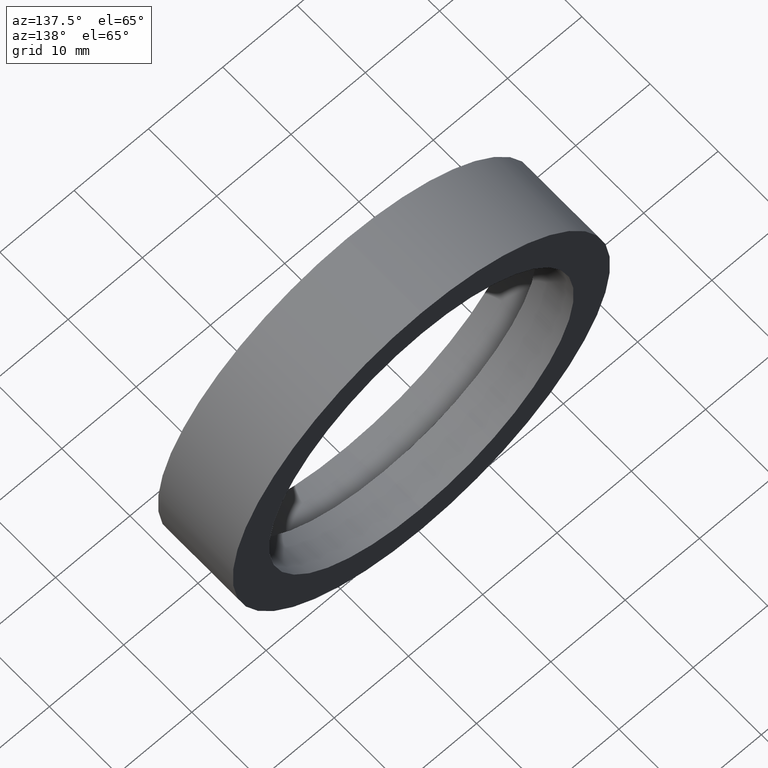
[diagram: clean part render]
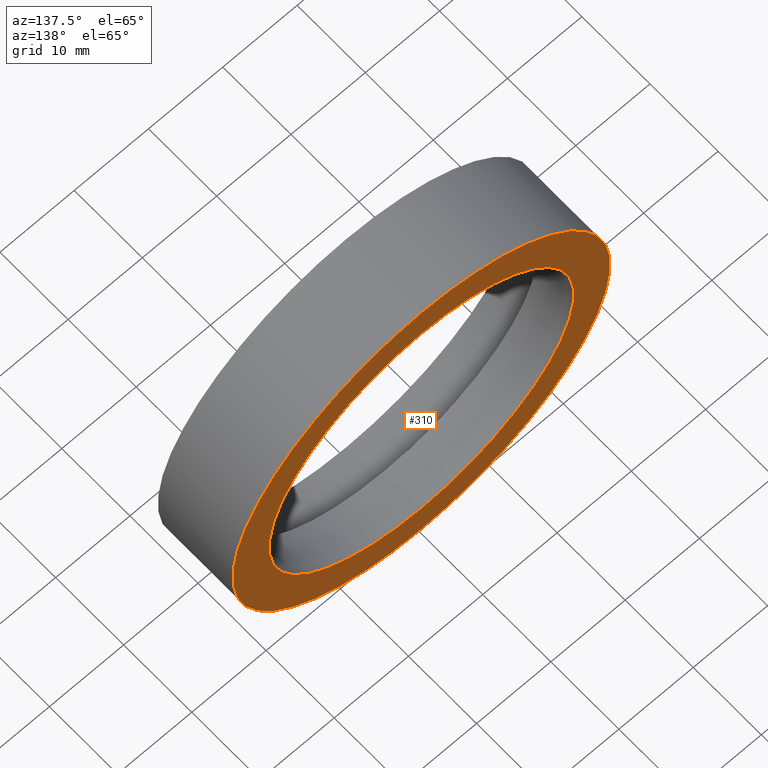
[diagram: same view with one face highlighted and labeled with its STEP entity id]
A machine part, auxiliary view. The second image highlights one B-rep face of the part: STEP entity #310.
In plain terms, the highlighted planar face has unit normal (0, -1, 0).
Its self-contained STEP definition (entity closure, byte-faithful):
#2 = EDGE_LOOP ( 'NONE', ( #192, #219 ) ) ;
#6 = ORIENTED_EDGE ( 'NONE', *, *, #84, .T. ) ;
#7 = EDGE_LOOP ( 'NONE', ( #319, #6 ) ) ;
#8 = VERTEX_POINT ( 'NONE', #174 ) ;
#12 = CARTESIAN_POINT ( 'NONE',  ( 2.510525938252074900E-015, 10.99999999999999600, -20.50000000000000700 ) ) ;
#16 = EDGE_CURVE ( 'NONE', #8, #180, #321, .T. ) ;
#26 = EDGE_CURVE ( 'NONE', #151, #168, #407, .T. ) ;
#67 = DIRECTION ( 'NONE',  ( 0.0000000000000000000, -1.000000000000000000, 0.0000000000000000000 ) ) ;
#80 = DIRECTION ( 'NONE',  ( 0.0000000000000000000, 0.0000000000000000000, 1.000000000000000000 ) ) ;
#84 = EDGE_CURVE ( 'NONE', #168, #151, #380, .T. ) ;
#99 = CARTESIAN_POINT ( 'NONE',  ( 20.50000000000000700, 11.00000000000000000, 0.0000000000000000000 ) ) ;
#106 = CARTESIAN_POINT ( 'NONE',  ( 0.0000000000000000000, 10.99999999999999600, 0.0000000000000000000 ) ) ;
#108 = DIRECTION ( 'NONE',  ( -0.0000000000000000000, 1.000000000000000000, -0.0000000000000000000 ) ) ;
#121 = DIRECTION ( 'NONE',  ( 0.0000000000000000000, 0.0000000000000000000, 1.000000000000000000 ) ) ;
#126 = EDGE_CURVE ( 'NONE', #180, #8, #393, .T. ) ;
#127 = AXIS2_PLACEMENT_3D ( 'NONE', #99, #67, #427 ) ;
#128 = DIRECTION ( 'NONE',  ( -0.0000000000000000000, 1.000000000000000000, -0.0000000000000000000 ) ) ;
#141 = AXIS2_PLACEMENT_3D ( 'NONE', #222, #417, #189 ) ;
#151 = VERTEX_POINT ( 'NONE', #363 ) ;
#168 = VERTEX_POINT ( 'NONE', #390 ) ;
#172 = CARTESIAN_POINT ( 'NONE',  ( 0.0000000000000000000, 10.99999999999999600, 0.0000000000000000000 ) ) ;
#174 = CARTESIAN_POINT ( 'NONE',  ( 0.0000000000000000000, 10.99999999999999600, 20.50000000000000700 ) ) ;
#180 = VERTEX_POINT ( 'NONE', #12 ) ;
#189 = DIRECTION ( 'NONE',  ( 0.0000000000000000000, 0.0000000000000000000, 1.000000000000000000 ) ) ;
#192 = ORIENTED_EDGE ( 'NONE', *, *, #16, .F. ) ;
#193 = FACE_OUTER_BOUND ( 'NONE', #7, .T. ) ;
#219 = ORIENTED_EDGE ( 'NONE', *, *, #126, .F. ) ;
#222 = CARTESIAN_POINT ( 'NONE',  ( 0.0000000000000000000, 10.99999999999999600, 0.0000000000000000000 ) ) ;
#266 = CARTESIAN_POINT ( 'NONE',  ( 0.0000000000000000000, 10.99999999999999600, 0.0000000000000000000 ) ) ;
#275 = PLANE ( 'NONE',  #127 ) ;
#290 = AXIS2_PLACEMENT_3D ( 'NONE', #106, #108, #387 ) ;
#306 = AXIS2_PLACEMENT_3D ( 'NONE', #172, #128, #80 ) ;
#310 = ADVANCED_FACE ( 'NONE', ( #364, #193 ), #275, .F. ) ;
#319 = ORIENTED_EDGE ( 'NONE', *, *, #26, .T. ) ;
#321 = CIRCLE ( 'NONE', #306, 20.50000000000000700 ) ;
#334 = DIRECTION ( 'NONE',  ( -0.0000000000000000000, 1.000000000000000000, -0.0000000000000000000 ) ) ;
#363 = CARTESIAN_POINT ( 'NONE',  ( 0.0000000000000000000, 10.99999999999999600, 25.40000000000000200 ) ) ;
#364 = FACE_BOUND ( 'NONE', #2, .T. ) ;
#380 = CIRCLE ( 'NONE', #141, 25.40000000000000200 ) ;
#387 = DIRECTION ( 'NONE',  ( 0.0000000000000000000, 0.0000000000000000000, 1.000000000000000000 ) ) ;
#390 = CARTESIAN_POINT ( 'NONE',  ( 3.110602869834277300E-015, 10.99999999999999600, -25.40000000000000200 ) ) ;
#393 = CIRCLE ( 'NONE', #290, 20.50000000000000700 ) ;
#407 = CIRCLE ( 'NONE', #414, 25.40000000000000200 ) ;
#414 = AXIS2_PLACEMENT_3D ( 'NONE', #266, #334, #121 ) ;
#417 = DIRECTION ( 'NONE',  ( -0.0000000000000000000, 1.000000000000000000, -0.0000000000000000000 ) ) ;
#427 = DIRECTION ( 'NONE',  ( 0.0000000000000000000, -0.0000000000000000000, -1.000000000000000000 ) ) ;